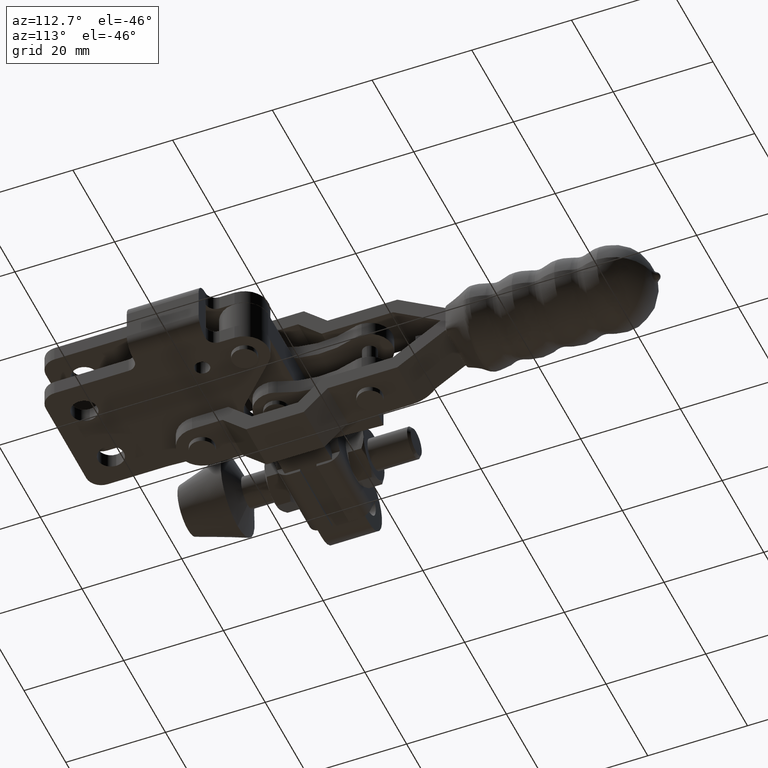
[diagram: clean part render]
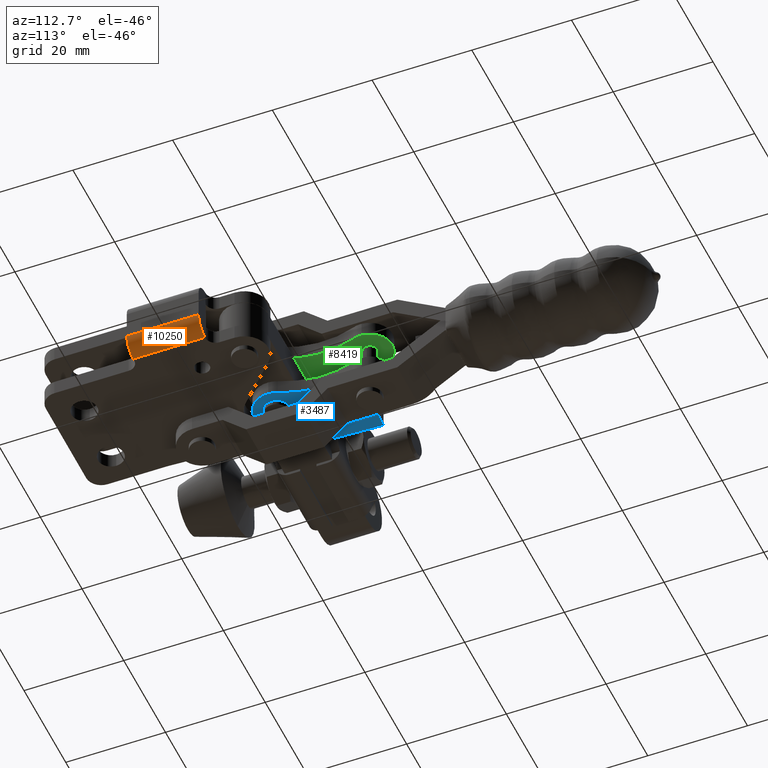
[diagram: same view with three faces highlighted in distinct colors, each labeled with its STEP entity id]
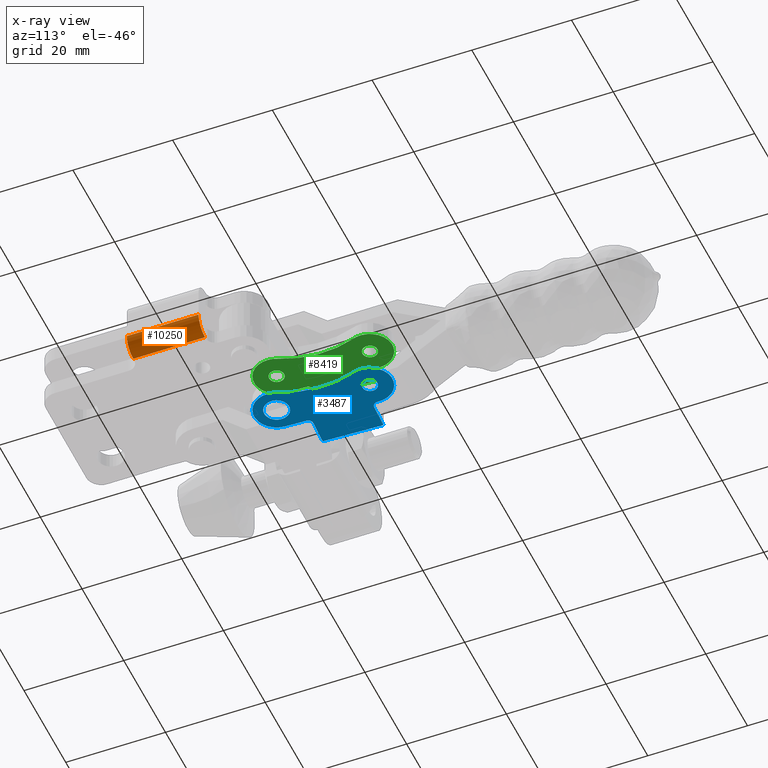
[diagram: x-ray of the same camera — body ghosted, the three highlighted faces saturated]
A machine part, auxiliary view with three faces highlighted in distinct colors.
The next image is the same camera in x-ray (body ghosted, the three faces saturated) — at least one of them is partly hidden behind the body in this view.
Their STEP definitions:

[orange] entity #10250 — the highlighted cylindrical surface (edge-blend (fillet) strip) has radius 3.1 mm, axis along (-0, -1, 0).
#355 = CIRCLE ( 'NONE', #11724, 3.100000000000000500 ) ;
#586 = DIRECTION ( 'NONE',  ( -1.000000000000000000, 0.0000000000000000000, -1.398970545142586000E-016 ) ) ;
#737 = DIRECTION ( 'NONE',  ( -1.183291357831517700E-030, -1.000000000000000000, 8.961354157610672400E-033 ) ) ;
#2325 = CIRCLE ( 'NONE', #10801, 3.100000000000000500 ) ;
#2895 = EDGE_CURVE ( 'NONE', #8125, #12648, #9458, .T. ) ;
#3013 = DIRECTION ( 'NONE',  ( -1.183291357831517700E-030, -1.000000000000000000, 8.961354157610672400E-033 ) ) ;
#3598 = DIRECTION ( 'NONE',  ( -1.183291357831517700E-030, -1.000000000000000000, 8.961354157610672400E-033 ) ) ;
#3762 = VECTOR ( 'NONE', #8507, 1000.000000000000000 ) ;
#3888 = VERTEX_POINT ( 'NONE', #7330 ) ;
#4517 = LINE ( 'NONE', #9111, #12240 ) ;
#5759 = CYLINDRICAL_SURFACE ( 'NONE', #12653, 3.100000000000000500 ) ;
#6278 = ORIENTED_EDGE ( 'NONE', *, *, #2895, .F. ) ;
#6413 = ORIENTED_EDGE ( 'NONE', *, *, #9340, .T. ) ;
#6776 = DIRECTION ( 'NONE',  ( -1.183291357831517700E-030, -1.000000000000000000, 8.961354157610672400E-033 ) ) ;
#6896 = CARTESIAN_POINT ( 'NONE',  ( 2.501039891701249700, 22.45000000000006300, -2.901039891700626600 ) ) ;
#7330 = CARTESIAN_POINT ( 'NONE',  ( 5.601039891701249800, 8.050000000000233400, -2.901039891700626600 ) ) ;
#7900 = DIRECTION ( 'NONE',  ( -1.000000000000000000, 0.0000000000000000000, -1.398970545142586000E-016 ) ) ;
#7940 = CARTESIAN_POINT ( 'NONE',  ( 5.601039891701249800, 22.45000000000006300, -2.901039891700626600 ) ) ;
#8125 = VERTEX_POINT ( 'NONE', #12993 ) ;
#8507 = DIRECTION ( 'NONE',  ( -1.183291357831517700E-030, -1.000000000000000000, 8.961354157610672400E-033 ) ) ;
#8730 = CARTESIAN_POINT ( 'NONE',  ( 2.501039891701249700, 22.45000000000006300, -2.901039891700626600 ) ) ;
#9111 = CARTESIAN_POINT ( 'NONE',  ( 5.601039891701249800, 22.45000000000006300, -2.901039891700626600 ) ) ;
#9147 = CARTESIAN_POINT ( 'NONE',  ( 2.501039891701239100, 8.050000000000233400, -6.001039891700629300 ) ) ;
#9340 = EDGE_CURVE ( 'NONE', #12366, #3888, #4517, .T. ) ;
#9458 = LINE ( 'NONE', #10101, #3762 ) ;
#9677 = CARTESIAN_POINT ( 'NONE',  ( 2.501039891701249700, 8.050000000000233400, -2.901039891700626600 ) ) ;
#10101 = CARTESIAN_POINT ( 'NONE',  ( 2.501039891701239100, 22.45000000000006300, -6.001039891700629300 ) ) ;
#10250 = ADVANCED_FACE ( 'NONE', ( #11105 ), #5759, .T. ) ;
#10507 = ORIENTED_EDGE ( 'NONE', *, *, #12328, .T. ) ;
#10672 = DIRECTION ( 'NONE',  ( -1.000000000000000000, 0.0000000000000000000, -1.398970545142586000E-016 ) ) ;
#10801 = AXIS2_PLACEMENT_3D ( 'NONE', #9677, #3598, #10672 ) ;
#11105 = FACE_OUTER_BOUND ( 'NONE', #11915, .T. ) ;
#11190 = ORIENTED_EDGE ( 'NONE', *, *, #12439, .F. ) ;
#11724 = AXIS2_PLACEMENT_3D ( 'NONE', #6896, #737, #7900 ) ;
#11915 = EDGE_LOOP ( 'NONE', ( #11190, #6278, #10507, #6413 ) ) ;
#12240 = VECTOR ( 'NONE', #3013, 1000.000000000000000 ) ;
#12328 = EDGE_CURVE ( 'NONE', #8125, #12366, #355, .T. ) ;
#12366 = VERTEX_POINT ( 'NONE', #7940 ) ;
#12439 = EDGE_CURVE ( 'NONE', #12648, #3888, #2325, .T. ) ;
#12648 = VERTEX_POINT ( 'NONE', #9147 ) ;
#12653 = AXIS2_PLACEMENT_3D ( 'NONE', #8730, #6776, #586 ) ;
#12993 = CARTESIAN_POINT ( 'NONE',  ( 2.501039891701239100, 22.45000000000006300, -6.001039891700629300 ) ) ;

[blue] entity #3487 — the highlighted planar face has unit normal (-0, -0, 1).
#9 = AXIS2_PLACEMENT_3D ( 'NONE', #6433, #13138, #9492 ) ;
#52 = DIRECTION ( 'NONE',  ( 0.9991002258233364600, 0.04241154040774931800, 0.0000000000000000000 ) ) ;
#86 = EDGE_CURVE ( 'NONE', #2515, #5273, #4908, .T. ) ;
#340 = DIRECTION ( 'NONE',  ( -2.590784928252338900E-024, -2.375055470720542200E-024, 1.000000000000000000 ) ) ;
#368 = AXIS2_PLACEMENT_3D ( 'NONE', #8557, #2453, #9573 ) ;
#710 = CARTESIAN_POINT ( 'NONE',  ( -26.14330698391114200, 45.40051491253531400, -6.000000000000021300 ) ) ;
#717 = DIRECTION ( 'NONE',  ( 0.9991002258233366900, 0.04241154040774554300, 0.0000000000000000000 ) ) ;
#905 = AXIS2_PLACEMENT_3D ( 'NONE', #710, #7885, #1728 ) ;
#918 = DIRECTION ( 'NONE',  ( -2.590784928252338900E-024, -2.375055470720542200E-024, 1.000000000000000000 ) ) ;
#935 = VERTEX_POINT ( 'NONE', #11345 ) ;
#1360 = CARTESIAN_POINT ( 'NONE',  ( -22.37504074957823300, 27.29260985436491900, -6.000000000000008900 ) ) ;
#1368 = CARTESIAN_POINT ( 'NONE',  ( -19.87999999999978600, 27.45000000000000300, -6.000000000000008900 ) ) ;
#1403 = CIRCLE ( 'NONE', #368, 1.500000000000001300 ) ;
#1420 = AXIS2_PLACEMENT_3D ( 'NONE', #3138, #10226, #4168 ) ;
#1683 = CIRCLE ( 'NONE', #9, 4.500000000000000900 ) ;
#1728 = DIRECTION ( 'NONE',  ( 0.9991002258233366900, 0.04241154040774554300, 0.0000000000000000000 ) ) ;
#1731 = CARTESIAN_POINT ( 'NONE',  ( -22.21253056130320800, 10.45865595469713800, -6.000000000000021300 ) ) ;
#1861 = DIRECTION ( 'NONE',  ( -2.590784928252338900E-024, -2.375055470720542200E-024, 1.000000000000000000 ) ) ;
#1897 = VERTEX_POINT ( 'NONE', #3025 ) ;
#1942 = VERTEX_POINT ( 'NONE', #8225 ) ;
#1955 = EDGE_LOOP ( 'NONE', ( #5589, #9240 ) ) ;
#2205 = DIRECTION ( 'NONE',  ( -2.590784928252338900E-024, -2.375055470720542200E-024, 1.000000000000000000 ) ) ;
#2239 = VECTOR ( 'NONE', #12305, 1000.000000000000000 ) ;
#2296 = EDGE_CURVE ( 'NONE', #5576, #7062, #11529, .T. ) ;
#2329 = CARTESIAN_POINT ( 'NONE',  ( -31.10003086616725600, 44.18920270987317200, -6.000000000000021300 ) ) ;
#2334 = CARTESIAN_POINT ( 'NONE',  ( -25.55317971174975300, 31.41295747620852900, -6.000000000000021300 ) ) ;
#2372 = ORIENTED_EDGE ( 'NONE', *, *, #9462, .F. ) ;
#2453 = DIRECTION ( 'NONE',  ( 2.590784928252338900E-024, 2.375055470720542200E-024, -1.000000000000000000 ) ) ;
#2515 = VERTEX_POINT ( 'NONE', #7262 ) ;
#2519 = ORIENTED_EDGE ( 'NONE', *, *, #12194, .F. ) ;
#2544 = EDGE_CURVE ( 'NONE', #1897, #9990, #7908, .T. ) ;
#2651 = CARTESIAN_POINT ( 'NONE',  ( -40.09193289857727600, 43.80749884620343000, -6.000000000000021300 ) ) ;
#2775 = VERTEX_POINT ( 'NONE', #2329 ) ;
#2995 = DIRECTION ( 'NONE',  ( -0.04241154040774909600, 0.9991002258233363500, 2.263039277467482200E-024 ) ) ;
#3025 = CARTESIAN_POINT ( 'NONE',  ( -16.16442132730638200, 46.02429608697740800, -6.000000000000021300 ) ) ;
#3026 = EDGE_CURVE ( 'NONE', #9990, #1942, #4882, .T. ) ;
#3034 = CARTESIAN_POINT ( 'NONE',  ( -23.14885562942138000, 32.51592098226007000, -6.000000000000021300 ) ) ;
#3078 = FACE_BOUND ( 'NONE', #1955, .T. ) ;
#3138 = CARTESIAN_POINT ( 'NONE',  ( 1.876510460537085500, 37.58184349365983900, -6.000000000000021300 ) ) ;
#3155 = ORIENTED_EDGE ( 'NONE', *, *, #2544, .F. ) ;
#3236 = CIRCLE ( 'NONE', #1420, 19.49999999999995000 ) ;
#3368 = DIRECTION ( 'NONE',  ( 0.9991002258233366900, 0.04241154040774539800, 0.0000000000000000000 ) ) ;
#3445 = CIRCLE ( 'NONE', #5132, 0.9999999999999983300 ) ;
#3477 = ORIENTED_EDGE ( 'NONE', *, *, #5698, .T. ) ;
#3487 = ADVANCED_FACE ( 'NONE', ( #11495, #5823, #3078 ), #10486, .F. ) ;
#3529 = EDGE_LOOP ( 'NONE', ( #2372, #5754, #7156, #11732, #5008, #3155, #7113, #7370, #2519, #5602, #5245, #4268, #11612 ) ) ;
#3571 = VERTEX_POINT ( 'NONE', #10862 ) ;
#3588 = AXIS2_PLACEMENT_3D ( 'NONE', #9692, #3614, #10694 ) ;
#3614 = DIRECTION ( 'NONE',  ( -2.590784928252338900E-024, -2.375055470720542200E-024, 1.000000000000000000 ) ) ;
#3742 = CARTESIAN_POINT ( 'NONE',  ( -24.55407948592641500, 31.45536901661628100, -6.000000000000021300 ) ) ;
#3774 = VECTOR ( 'NONE', #5993, 1000.000000000000100 ) ;
#4088 = CIRCLE ( 'NONE', #3588, 4.500000000000037300 ) ;
#4168 = DIRECTION ( 'NONE',  ( 0.9991002258233364600, 0.04241154040774895700, 0.0000000000000000000 ) ) ;
#4238 = CARTESIAN_POINT ( 'NONE',  ( -19.87999999999978600, 27.45000000000000300, -6.000000000000008900 ) ) ;
#4268 = ORIENTED_EDGE ( 'NONE', *, *, #11629, .T. ) ;
#4346 = AXIS2_PLACEMENT_3D ( 'NONE', #2334, #9447, #3368 ) ;
#4564 = EDGE_CURVE ( 'NONE', #5240, #935, #5342, .T. ) ;
#4800 = AXIS2_PLACEMENT_3D ( 'NONE', #7997, #1861, #9004 ) ;
#4882 = CIRCLE ( 'NONE', #8704, 4.500000000000000900 ) ;
#4908 = LINE ( 'NONE', #7912, #10246 ) ;
#5008 = ORIENTED_EDGE ( 'NONE', *, *, #3026, .F. ) ;
#5132 = AXIS2_PLACEMENT_3D ( 'NONE', #12885, #6875, #717 ) ;
#5240 = VERTEX_POINT ( 'NONE', #1360 ) ;
#5245 = ORIENTED_EDGE ( 'NONE', *, *, #86, .T. ) ;
#5273 = VERTEX_POINT ( 'NONE', #3742 ) ;
#5309 = DIRECTION ( 'NONE',  ( 0.9991002258233364600, 0.04241154040774889500, 2.689183567943717800E-024 ) ) ;
#5342 = CIRCLE ( 'NONE', #6153, 2.499999999999996900 ) ;
#5405 = CARTESIAN_POINT ( 'NONE',  ( -30.59109238127426900, 32.19999999999311800, -6.000000000000021300 ) ) ;
#5576 = VERTEX_POINT ( 'NONE', #6874 ) ;
#5589 = ORIENTED_EDGE ( 'NONE', *, *, #10144, .F. ) ;
#5602 = ORIENTED_EDGE ( 'NONE', *, *, #11855, .F. ) ;
#5685 = EDGE_CURVE ( 'NONE', #2775, #10149, #12555, .T. ) ;
#5698 = EDGE_CURVE ( 'NONE', #935, #5240, #9889, .T. ) ;
#5754 = ORIENTED_EDGE ( 'NONE', *, *, #5685, .T. ) ;
#5823 = FACE_OUTER_BOUND ( 'NONE', #3529, .T. ) ;
#5992 = CARTESIAN_POINT ( 'NONE',  ( -19.16037234351139100, 45.83344415514248000, -6.000000000000021300 ) ) ;
#5993 = DIRECTION ( 'NONE',  ( -0.9991002258233363500, -0.04241154040774923500, -2.689183567943718200E-024 ) ) ;
#6153 = AXIS2_PLACEMENT_3D ( 'NONE', #4238, #10846, #12403 ) ;
#6287 = CARTESIAN_POINT ( 'NONE',  ( -29.65476731315610300, 10.14273497243018500, -6.000000000000021300 ) ) ;
#6312 = EDGE_CURVE ( 'NONE', #11729, #10842, #13023, .T. ) ;
#6433 = CARTESIAN_POINT ( 'NONE',  ( -20.66037234351139800, 45.83344415514253700, -6.000000000000021300 ) ) ;
#6542 = DIRECTION ( 'NONE',  ( 0.9991002258233364600, 0.04241154040774931800, 0.0000000000000000000 ) ) ;
#6545 = CIRCLE ( 'NONE', #4346, 1.000000000000001800 ) ;
#6874 = CARTESIAN_POINT ( 'NONE',  ( -25.59559125215750100, 32.41205770203186600, -6.000000000000021300 ) ) ;
#6875 = DIRECTION ( 'NONE',  ( -2.590784928252338900E-024, -2.375055470720542200E-024, 1.000000000000000000 ) ) ;
#7062 = VERTEX_POINT ( 'NONE', #5405 ) ;
#7113 = ORIENTED_EDGE ( 'NONE', *, *, #7672, .F. ) ;
#7156 = ORIENTED_EDGE ( 'NONE', *, *, #12603, .T. ) ;
#7213 = VECTOR ( 'NONE', #5309, 1000.000000000000000 ) ;
#7262 = CARTESIAN_POINT ( 'NONE',  ( -24.37595101621387200, 27.25914806815827200, -6.000000000000021300 ) ) ;
#7370 = ORIENTED_EDGE ( 'NONE', *, *, #12697, .T. ) ;
#7372 = LINE ( 'NONE', #6287, #2239 ) ;
#7455 = VERTEX_POINT ( 'NONE', #8853 ) ;
#7526 = CIRCLE ( 'NONE', #905, 0.9999999999999983300 ) ;
#7672 = EDGE_CURVE ( 'NONE', #3571, #1897, #1683, .T. ) ;
#7885 = DIRECTION ( 'NONE',  ( -2.590784928252338900E-024, -2.375055470720542200E-024, 1.000000000000000000 ) ) ;
#7908 = CIRCLE ( 'NONE', #12577, 4.500000000000000900 ) ;
#7912 = CARTESIAN_POINT ( 'NONE',  ( -23.66016595821599500, 10.39720421487668200, -6.000000000000021300 ) ) ;
#7997 = CARTESIAN_POINT ( 'NONE',  ( -19.88000000000881300, 27.44999999999313900, -6.000000000000021300 ) ) ;
#8043 = AXIS2_PLACEMENT_3D ( 'NONE', #1368, #9593, #9307 ) ;
#8090 = CARTESIAN_POINT ( 'NONE',  ( -15.80065428865642300, 29.34972065505566300, -6.000000000000021300 ) ) ;
#8225 = CARTESIAN_POINT ( 'NONE',  ( -25.14640977656573600, 45.47922932028208700, -6.000000000000021300 ) ) ;
#8557 = CARTESIAN_POINT ( 'NONE',  ( -20.66037234351139400, 45.83344415514248000, -6.000000000000021300 ) ) ;
#8704 = AXIS2_PLACEMENT_3D ( 'NONE', #11206, #2205, #52 ) ;
#8853 = CARTESIAN_POINT ( 'NONE',  ( -25.14420675808780800, 45.44292645294306300, -6.000000000000021300 ) ) ;
#8980 = DIRECTION ( 'NONE',  ( 2.590784928252338900E-024, 2.375055470720542200E-024, -1.000000000000000000 ) ) ;
#9004 = DIRECTION ( 'NONE',  ( 0.9991002258233364600, 0.04241154040774897800, 0.0000000000000000000 ) ) ;
#9070 = DIRECTION ( 'NONE',  ( 1.000000000000000000, 0.0000000000000000000, 0.0000000000000000000 ) ) ;
#9240 = ORIENTED_EDGE ( 'NONE', *, *, #6312, .F. ) ;
#9300 = AXIS2_PLACEMENT_3D ( 'NONE', #1731, #918, #13172 ) ;
#9307 = DIRECTION ( 'NONE',  ( 0.9980162998313778500, 0.06295605825403374800, 0.0000000000000000000 ) ) ;
#9326 = CARTESIAN_POINT ( 'NONE',  ( -20.66037234351139400, 45.83344415514248000, -6.000000000000021300 ) ) ;
#9345 = CARTESIAN_POINT ( 'NONE',  ( -25.15632335971641000, 45.64259222330766600, -6.000000000000021300 ) ) ;
#9447 = DIRECTION ( 'NONE',  ( -2.590784928252338900E-024, -2.375055470720542200E-024, 1.000000000000000000 ) ) ;
#9462 = EDGE_CURVE ( 'NONE', #2775, #7062, #7372, .T. ) ;
#9492 = DIRECTION ( 'NONE',  ( 0.9991002258233364600, 0.04241154040774931800, 0.0000000000000000000 ) ) ;
#9532 = CARTESIAN_POINT ( 'NONE',  ( -22.16037234351139400, 45.83344415514248000, -6.000000000000021300 ) ) ;
#9573 = DIRECTION ( 'NONE',  ( 1.000000000000000000, 0.0000000000000000000, 0.0000000000000000000 ) ) ;
#9593 = DIRECTION ( 'NONE',  ( 0.0000000000000000000, 0.0000000000000000000, 1.000000000000000000 ) ) ;
#9675 = EDGE_CURVE ( 'NONE', #7455, #1942, #7526, .T. ) ;
#9692 = CARTESIAN_POINT ( 'NONE',  ( -19.88000000000881300, 27.44999999999313900, -6.000000000000021300 ) ) ;
#9833 = VERTEX_POINT ( 'NONE', #8090 ) ;
#9889 = CIRCLE ( 'NONE', #8043, 2.499999999999996900 ) ;
#9990 = VERTEX_POINT ( 'NONE', #9345 ) ;
#10144 = EDGE_CURVE ( 'NONE', #10842, #11729, #1403, .T. ) ;
#10149 = VERTEX_POINT ( 'NONE', #10528 ) ;
#10226 = DIRECTION ( 'NONE',  ( -2.590784928252338900E-024, -2.375055470720542200E-024, 1.000000000000000000 ) ) ;
#10246 = VECTOR ( 'NONE', #2995, 1000.000000000000100 ) ;
#10425 = CIRCLE ( 'NONE', #4800, 4.500000000000037300 ) ;
#10486 = PLANE ( 'NONE',  #9300 ) ;
#10528 = CARTESIAN_POINT ( 'NONE',  ( -26.10089544350339400, 44.40141468671198800, -6.000000000000021300 ) ) ;
#10694 = DIRECTION ( 'NONE',  ( 0.9991002258233364600, 0.04241154040774897800, 0.0000000000000000000 ) ) ;
#10842 = VERTEX_POINT ( 'NONE', #5992 ) ;
#10846 = DIRECTION ( 'NONE',  ( 0.0000000000000000000, 0.0000000000000000000, 1.000000000000000000 ) ) ;
#10862 = CARTESIAN_POINT ( 'NONE',  ( -16.43470681775229600, 44.28626903111451400, -6.000000000000021300 ) ) ;
#11206 = CARTESIAN_POINT ( 'NONE',  ( -20.66037234351139800, 45.83344415514253700, -6.000000000000021300 ) ) ;
#11247 = ORIENTED_EDGE ( 'NONE', *, *, #4564, .T. ) ;
#11345 = CARTESIAN_POINT ( 'NONE',  ( -17.38495925042134600, 27.60739014563508700, -6.000000000000008900 ) ) ;
#11479 = VERTEX_POINT ( 'NONE', #12261 ) ;
#11495 = FACE_BOUND ( 'NONE', #13155, .T. ) ;
#11529 = LINE ( 'NONE', #3034, #3774 ) ;
#11547 = CARTESIAN_POINT ( 'NONE',  ( -20.66037234351139800, 45.83344415514253700, -6.000000000000021300 ) ) ;
#11612 = ORIENTED_EDGE ( 'NONE', *, *, #2296, .T. ) ;
#11629 = EDGE_CURVE ( 'NONE', #5273, #5576, #6545, .T. ) ;
#11729 = VERTEX_POINT ( 'NONE', #9532 ) ;
#11732 = ORIENTED_EDGE ( 'NONE', *, *, #9675, .T. ) ;
#11855 = EDGE_CURVE ( 'NONE', #2515, #11479, #10425, .T. ) ;
#11865 = AXIS2_PLACEMENT_3D ( 'NONE', #9326, #8980, #9070 ) ;
#12194 = EDGE_CURVE ( 'NONE', #11479, #9833, #4088, .T. ) ;
#12261 = CARTESIAN_POINT ( 'NONE',  ( -15.38404898380376400, 27.64085193182801000, -6.000000000000021300 ) ) ;
#12305 = DIRECTION ( 'NONE',  ( 0.04241154040774889500, -0.9991002258233364600, -2.263039277467483300E-024 ) ) ;
#12403 = DIRECTION ( 'NONE',  ( 0.9980162998313778500, 0.06295605825403374800, 0.0000000000000000000 ) ) ;
#12555 = LINE ( 'NONE', #2651, #7213 ) ;
#12577 = AXIS2_PLACEMENT_3D ( 'NONE', #11547, #340, #6542 ) ;
#12603 = EDGE_CURVE ( 'NONE', #10149, #7455, #3445, .T. ) ;
#12697 = EDGE_CURVE ( 'NONE', #3571, #9833, #3236, .T. ) ;
#12885 = CARTESIAN_POINT ( 'NONE',  ( -26.14330698391114200, 45.40051491253531400, -6.000000000000021300 ) ) ;
#13023 = CIRCLE ( 'NONE', #11865, 1.500000000000001300 ) ;
#13138 = DIRECTION ( 'NONE',  ( -2.590784928252338900E-024, -2.375055470720542200E-024, 1.000000000000000000 ) ) ;
#13155 = EDGE_LOOP ( 'NONE', ( #3477, #11247 ) ) ;
#13172 = DIRECTION ( 'NONE',  ( 0.9991002258233364600, 0.04241154040774889500, 2.689183567943717800E-024 ) ) ;

[green] entity #8419 — the highlighted planar face has unit normal (-0, 0, 1).
#76 = CARTESIAN_POINT ( 'NONE',  ( -20.66037234351139800, 45.83344415514253700, 3.000000000000061700 ) ) ;
#132 = EDGE_CURVE ( 'NONE', #11226, #8182, #12619, .T. ) ;
#176 = AXIS2_PLACEMENT_3D ( 'NONE', #76, #4921, #3661 ) ;
#348 = DIRECTION ( 'NONE',  ( -8.160531857884035000E-016, 1.922398742600018400E-014, 1.000000000000000000 ) ) ;
#463 = ORIENTED_EDGE ( 'NONE', *, *, #7586, .T. ) ;
#562 = AXIS2_PLACEMENT_3D ( 'NONE', #8198, #2070, #9203 ) ;
#731 = VECTOR ( 'NONE', #12183, 1000.000000000000100 ) ;
#777 = DIRECTION ( 'NONE',  ( 0.04241154040775778300, -0.9991002258233360200, 1.927470528863117800E-014 ) ) ;
#779 = CARTESIAN_POINT ( 'NONE',  ( -26.10089544350339400, 44.40141468671198100, 3.000000000000084400 ) ) ;
#960 = VERTEX_POINT ( 'NONE', #5947 ) ;
#985 = VECTOR ( 'NONE', #2832, 1000.000000000000000 ) ;
#1265 = CIRCLE ( 'NONE', #6862, 4.500000000000000900 ) ;
#1273 = VERTEX_POINT ( 'NONE', #9806 ) ;
#1304 = LINE ( 'NONE', #6849, #985 ) ;
#1359 = CIRCLE ( 'NONE', #11200, 1.500000000000001300 ) ;
#1445 = LINE ( 'NONE', #2520, #3887 ) ;
#1465 = FACE_BOUND ( 'NONE', #9175, .T. ) ;
#1642 = EDGE_CURVE ( 'NONE', #1273, #12345, #3129, .T. ) ;
#1817 = DIRECTION ( 'NONE',  ( -4.854254476205870700E-016, 1.143529974069735500E-014, -1.000000000000000000 ) ) ;
#1828 = DIRECTION ( 'NONE',  ( 0.04241154040774777800, -0.9991002258233364600, 1.927470528863118700E-014 ) ) ;
#1844 = VERTEX_POINT ( 'NONE', #10572 ) ;
#1891 = VERTEX_POINT ( 'NONE', #2782 ) ;
#1924 = DIRECTION ( 'NONE',  ( -8.160531857884035000E-016, 1.922398742600018400E-014, 1.000000000000000000 ) ) ;
#2009 = CARTESIAN_POINT ( 'NONE',  ( -16.16442132730638200, 46.02429608697740800, 3.000000000000061700 ) ) ;
#2070 = DIRECTION ( 'NONE',  ( 8.160531857884035000E-016, -1.922398742600018400E-014, -1.000000000000000000 ) ) ;
#2106 = AXIS2_PLACEMENT_3D ( 'NONE', #8066, #1924, #9056 ) ;
#2170 = DIRECTION ( 'NONE',  ( 0.04241154040774587600, -0.9991002258233364600, -1.146844964673545900E-014 ) ) ;
#2330 = VERTEX_POINT ( 'NONE', #2009 ) ;
#2520 = CARTESIAN_POINT ( 'NONE',  ( -46.33252571787630100, 31.53178031714692900, 3.000000000000084400 ) ) ;
#2702 = ORIENTED_EDGE ( 'NONE', *, *, #6108, .T. ) ;
#2782 = CARTESIAN_POINT ( 'NONE',  ( -25.14640977656573600, 45.47922932028208700, 3.000000000000148300 ) ) ;
#2798 = CARTESIAN_POINT ( 'NONE',  ( -24.55407948592641200, 31.45536901661628100, 3.000000000000071900 ) ) ;
#2832 = DIRECTION ( 'NONE',  ( 0.9991002258233364600, 0.04241154040774889500, 2.689183567943717800E-024 ) ) ;
#3009 = VERTEX_POINT ( 'NONE', #4340 ) ;
#3016 = ORIENTED_EDGE ( 'NONE', *, *, #9081, .F. ) ;
#3129 = CIRCLE ( 'NONE', #4335, 0.9999999999999985600 ) ;
#3211 = ORIENTED_EDGE ( 'NONE', *, *, #8072, .T. ) ;
#3249 = DIRECTION ( 'NONE',  ( 0.04241154040774539800, -0.9991002258233366900, -1.127570259384922600E-014 ) ) ;
#3376 = CARTESIAN_POINT ( 'NONE',  ( -22.16037234351139400, 45.83344415514248000, 3.000000000000058600 ) ) ;
#3451 = CARTESIAN_POINT ( 'NONE',  ( -23.66016595821598800, 10.39720421487657900, 2.999999999999830800 ) ) ;
#3465 = LINE ( 'NONE', #13162, #731 ) ;
#3568 = AXIS2_PLACEMENT_3D ( 'NONE', #11706, #8393, #6337 ) ;
#3661 = DIRECTION ( 'NONE',  ( 0.04241154040774393300, -0.9991002258233366900, 1.927470528863119000E-014 ) ) ;
#3697 = CIRCLE ( 'NONE', #4855, 4.500000000000039100 ) ;
#3801 = VERTEX_POINT ( 'NONE', #4711 ) ;
#3851 = VECTOR ( 'NONE', #4480, 1000.000000000000100 ) ;
#3887 = VECTOR ( 'NONE', #8627, 1000.000000000000000 ) ;
#3908 = FACE_BOUND ( 'NONE', #11271, .T. ) ;
#4335 = AXIS2_PLACEMENT_3D ( 'NONE', #10615, #5151, #5656 ) ;
#4340 = CARTESIAN_POINT ( 'NONE',  ( -19.87999999999978200, 25.94999999999999900, 3.000000000000443600 ) ) ;
#4480 = DIRECTION ( 'NONE',  ( 0.04241154040774909600, -0.9991002258233363500, -1.144559819427497900E-014 ) ) ;
#4711 = CARTESIAN_POINT ( 'NONE',  ( -15.38404898380376400, 27.64085193182801000, 3.000000000000025300 ) ) ;
#4855 = AXIS2_PLACEMENT_3D ( 'NONE', #10582, #8275, #2170 ) ;
#4921 = DIRECTION ( 'NONE',  ( 8.160531857884035000E-016, -1.922398742600018400E-014, -1.000000000000000000 ) ) ;
#4938 = DIRECTION ( 'NONE',  ( -4.854254476205870700E-016, 1.143529974069735500E-014, -1.000000000000000000 ) ) ;
#5063 = AXIS2_PLACEMENT_3D ( 'NONE', #10987, #4938, #11998 ) ;
#5100 = VERTEX_POINT ( 'NONE', #12562 ) ;
#5151 = DIRECTION ( 'NONE',  ( 8.160531857884035000E-016, -1.922398742600018400E-014, -1.000000000000000000 ) ) ;
#5388 = CARTESIAN_POINT ( 'NONE',  ( -20.66037234351139400, 45.83344415514248000, 3.000000000000060000 ) ) ;
#5406 = ORIENTED_EDGE ( 'NONE', *, *, #6445, .T. ) ;
#5412 = CIRCLE ( 'NONE', #3568, 0.9999999999999948900 ) ;
#5506 = PLANE ( 'NONE',  #10189 ) ;
#5656 = DIRECTION ( 'NONE',  ( 0.04241154040774900600, -0.9991002258233364600, 1.908195823574490600E-014 ) ) ;
#5711 = CARTESIAN_POINT ( 'NONE',  ( -25.15632335971641000, 45.64259222330766600, 3.000000000000061700 ) ) ;
#5797 = DIRECTION ( 'NONE',  ( -4.854254476205870700E-016, 1.143529974069735500E-014, -1.000000000000000000 ) ) ;
#5897 = DIRECTION ( 'NONE',  ( 0.0000000000000000000, 1.000000000000000000, -1.908195823574486200E-014 ) ) ;
#5935 = EDGE_CURVE ( 'NONE', #5100, #6619, #11634, .T. ) ;
#5947 = CARTESIAN_POINT ( 'NONE',  ( -24.37595101621387200, 27.25914806815827200, 3.000000000000024000 ) ) ;
#6096 = CARTESIAN_POINT ( 'NONE',  ( -19.87999999999978600, 27.45000000000000300, 3.000000000000415200 ) ) ;
#6108 = EDGE_CURVE ( 'NONE', #9141, #2330, #1265, .T. ) ;
#6154 = CARTESIAN_POINT ( 'NONE',  ( -28.10273018869724400, 44.31643733109637400, 3.000000000000084400 ) ) ;
#6337 = DIRECTION ( 'NONE',  ( 0.04241154040766242200, -0.9991002258233401300, 1.908195823574497600E-014 ) ) ;
#6445 = EDGE_CURVE ( 'NONE', #11226, #3801, #3697, .T. ) ;
#6619 = VERTEX_POINT ( 'NONE', #2798 ) ;
#6798 = DIRECTION ( 'NONE',  ( 8.160531857884035000E-016, -1.922398742600018400E-014, -1.000000000000000000 ) ) ;
#6832 = ORIENTED_EDGE ( 'NONE', *, *, #8263, .T. ) ;
#6849 = CARTESIAN_POINT ( 'NONE',  ( -46.84146420276928800, 43.52098302702697900, 3.000000000000084400 ) ) ;
#6862 = AXIS2_PLACEMENT_3D ( 'NONE', #7712, #6798, #1828 ) ;
#6895 = CARTESIAN_POINT ( 'NONE',  ( -16.43470681775229600, 44.28626903111451400, 3.000000000000084400 ) ) ;
#7031 = DIRECTION ( 'NONE',  ( 0.04241154040774889500, -0.9991002258233364600, -1.145362295035971800E-014 ) ) ;
#7055 = VERTEX_POINT ( 'NONE', #3376 ) ;
#7125 = DIRECTION ( 'NONE',  ( 0.0000000000000000000, 1.000000000000000000, -1.908195823574486200E-014 ) ) ;
#7206 = ORIENTED_EDGE ( 'NONE', *, *, #1642, .F. ) ;
#7349 = EDGE_CURVE ( 'NONE', #1891, #1273, #5412, .T. ) ;
#7385 = ORIENTED_EDGE ( 'NONE', *, *, #9832, .F. ) ;
#7558 = DIRECTION ( 'NONE',  ( 0.04241154040774889500, -0.9991002258233364600, 1.924130025120570100E-014 ) ) ;
#7586 = EDGE_CURVE ( 'NONE', #1891, #9141, #12155, .T. ) ;
#7620 = EDGE_CURVE ( 'NONE', #11952, #7055, #1359, .T. ) ;
#7671 = CIRCLE ( 'NONE', #11822, 1.500000000000001300 ) ;
#7712 = CARTESIAN_POINT ( 'NONE',  ( -20.66037234351139800, 45.83344415514253700, 3.000000000000061700 ) ) ;
#8066 = CARTESIAN_POINT ( 'NONE',  ( -20.66037234351139400, 45.83344415514248000, 3.000000000000060000 ) ) ;
#8072 = EDGE_CURVE ( 'NONE', #2330, #8182, #12605, .T. ) ;
#8108 = VERTEX_POINT ( 'NONE', #11186 ) ;
#8182 = VERTEX_POINT ( 'NONE', #6895 ) ;
#8198 = CARTESIAN_POINT ( 'NONE',  ( -19.87999999999978600, 27.45000000000000300, 3.000000000000415200 ) ) ;
#8263 = EDGE_CURVE ( 'NONE', #12677, #12345, #1304, .T. ) ;
#8275 = DIRECTION ( 'NONE',  ( -4.854254476205870700E-016, 1.143529974069735500E-014, -1.000000000000000000 ) ) ;
#8317 = DIRECTION ( 'NONE',  ( 8.160531857884035000E-016, -1.922398742600018400E-014, -1.000000000000000000 ) ) ;
#8393 = DIRECTION ( 'NONE',  ( 8.160531857884035000E-016, -1.922398742600018400E-014, -1.000000000000000000 ) ) ;
#8419 = ADVANCED_FACE ( 'NONE', ( #11667, #3908, #1465 ), #5506, .F. ) ;
#8576 = ORIENTED_EDGE ( 'NONE', *, *, #11969, .F. ) ;
#8627 = DIRECTION ( 'NONE',  ( 0.9991002258233364600, 0.04241154040774889500, 2.689183567943717800E-024 ) ) ;
#8760 = ORIENTED_EDGE ( 'NONE', *, *, #5935, .F. ) ;
#8969 = CARTESIAN_POINT ( 'NONE',  ( 1.876510460537085500, 37.58184349365983900, 3.000000000000129200 ) ) ;
#8999 = ORIENTED_EDGE ( 'NONE', *, *, #7349, .F. ) ;
#9056 = DIRECTION ( 'NONE',  ( 0.0000000000000000000, 1.000000000000000000, -1.908195823574486200E-014 ) ) ;
#9081 = EDGE_CURVE ( 'NONE', #1844, #5100, #1445, .T. ) ;
#9141 = VERTEX_POINT ( 'NONE', #5711 ) ;
#9166 = CARTESIAN_POINT ( 'NONE',  ( -19.16037234351139100, 45.83344415514248000, 3.000000000000061300 ) ) ;
#9175 = EDGE_LOOP ( 'NONE', ( #7385, #10153 ) ) ;
#9203 = DIRECTION ( 'NONE',  ( 0.0000000000000000000, 1.000000000000000000, -1.908195823574486200E-014 ) ) ;
#9328 = EDGE_CURVE ( 'NONE', #7055, #11952, #10840, .T. ) ;
#9459 = CARTESIAN_POINT ( 'NONE',  ( -25.55317971174975300, 31.41295747620852900, 3.000000000000071900 ) ) ;
#9765 = EDGE_CURVE ( 'NONE', #3801, #960, #11927, .T. ) ;
#9806 = CARTESIAN_POINT ( 'NONE',  ( -25.14420675808780800, 45.44292645294306300, 3.000000000000065300 ) ) ;
#9832 = EDGE_CURVE ( 'NONE', #3009, #8108, #7671, .T. ) ;
#9861 = AXIS2_PLACEMENT_3D ( 'NONE', #10720, #8317, #777 ) ;
#9993 = ORIENTED_EDGE ( 'NONE', *, *, #7620, .T. ) ;
#10126 = EDGE_CURVE ( 'NONE', #6619, #960, #11916, .T. ) ;
#10153 = ORIENTED_EDGE ( 'NONE', *, *, #10466, .F. ) ;
#10174 = EDGE_LOOP ( 'NONE', ( #463, #2702, #3211, #12551, #5406, #12051, #12409, #8760, #3016, #8576, #6832, #7206, #8999 ) ) ;
#10189 = AXIS2_PLACEMENT_3D ( 'NONE', #12508, #348, #7558 ) ;
#10318 = DIRECTION ( 'NONE',  ( -8.160531857884035000E-016, 1.922398742600018400E-014, 1.000000000000000000 ) ) ;
#10447 = AXIS2_PLACEMENT_3D ( 'NONE', #9459, #5797, #3249 ) ;
#10466 = EDGE_CURVE ( 'NONE', #8108, #3009, #12667, .T. ) ;
#10572 = CARTESIAN_POINT ( 'NONE',  ( -27.59379170380425000, 32.32723462121632700, 3.000000000000084400 ) ) ;
#10582 = CARTESIAN_POINT ( 'NONE',  ( -19.88000000000881300, 27.44999999999313900, 3.000000000000025300 ) ) ;
#10615 = CARTESIAN_POINT ( 'NONE',  ( -26.14330698391114200, 45.40051491253531400, 3.000000000000065300 ) ) ;
#10720 = CARTESIAN_POINT ( 'NONE',  ( -20.66037234351139800, 45.83344415514253700, 3.000000000000061700 ) ) ;
#10840 = CIRCLE ( 'NONE', #2106, 1.500000000000001300 ) ;
#10987 = CARTESIAN_POINT ( 'NONE',  ( -19.88000000000881300, 27.44999999999313900, 3.000000000000025300 ) ) ;
#11186 = CARTESIAN_POINT ( 'NONE',  ( -19.87999999999978200, 28.95000000000000300, 3.000000000000386400 ) ) ;
#11200 = AXIS2_PLACEMENT_3D ( 'NONE', #5388, #10318, #5897 ) ;
#11226 = VERTEX_POINT ( 'NONE', #11797 ) ;
#11271 = EDGE_LOOP ( 'NONE', ( #9993, #13034 ) ) ;
#11634 = CIRCLE ( 'NONE', #10447, 1.000000000000001800 ) ;
#11667 = FACE_OUTER_BOUND ( 'NONE', #10174, .T. ) ;
#11706 = CARTESIAN_POINT ( 'NONE',  ( -26.14330698391114200, 45.40051491253531400, 3.000000000000065300 ) ) ;
#11797 = CARTESIAN_POINT ( 'NONE',  ( -15.80065428865642300, 29.34972065505566300, 3.000000000000045300 ) ) ;
#11822 = AXIS2_PLACEMENT_3D ( 'NONE', #6096, #13119, #7125 ) ;
#11916 = LINE ( 'NONE', #3451, #3851 ) ;
#11927 = CIRCLE ( 'NONE', #5063, 4.500000000000035500 ) ;
#11952 = VERTEX_POINT ( 'NONE', #9166 ) ;
#11969 = EDGE_CURVE ( 'NONE', #12677, #1844, #3465, .T. ) ;
#11998 = DIRECTION ( 'NONE',  ( 0.04241154040774745100, -0.9991002258233364600, -1.146844964673546700E-014 ) ) ;
#12051 = ORIENTED_EDGE ( 'NONE', *, *, #9765, .T. ) ;
#12155 = CIRCLE ( 'NONE', #9861, 4.500000000000002700 ) ;
#12183 = DIRECTION ( 'NONE',  ( 0.04241154040774919300, -0.9991002258233363500, -2.263039277467482200E-024 ) ) ;
#12345 = VERTEX_POINT ( 'NONE', #779 ) ;
#12409 = ORIENTED_EDGE ( 'NONE', *, *, #10126, .F. ) ;
#12508 = CARTESIAN_POINT ( 'NONE',  ( -31.10003086616725600, 44.18920270987312900, 3.000000000000084400 ) ) ;
#12551 = ORIENTED_EDGE ( 'NONE', *, *, #132, .F. ) ;
#12562 = CARTESIAN_POINT ( 'NONE',  ( -25.59559125215749700, 32.41205770203182400, 3.000000000000084400 ) ) ;
#12605 = CIRCLE ( 'NONE', #176, 4.500000000000000000 ) ;
#12619 = CIRCLE ( 'NONE', #12876, 19.49999999999995000 ) ;
#12667 = CIRCLE ( 'NONE', #562, 1.500000000000001300 ) ;
#12677 = VERTEX_POINT ( 'NONE', #6154 ) ;
#12876 = AXIS2_PLACEMENT_3D ( 'NONE', #8969, #1817, #7031 ) ;
#13034 = ORIENTED_EDGE ( 'NONE', *, *, #9328, .T. ) ;
#13119 = DIRECTION ( 'NONE',  ( 8.160531857884035000E-016, -1.922398742600018400E-014, -1.000000000000000000 ) ) ;
#13162 = CARTESIAN_POINT ( 'NONE',  ( -28.10273018869724400, 44.31643733109638100, 3.000000000000084400 ) ) ;